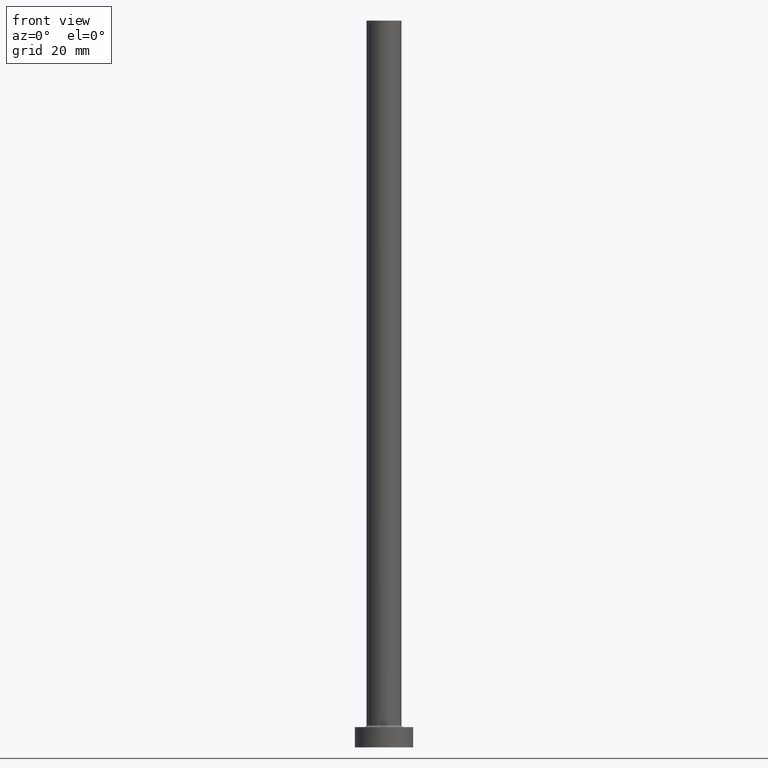
[diagram: clean part render]
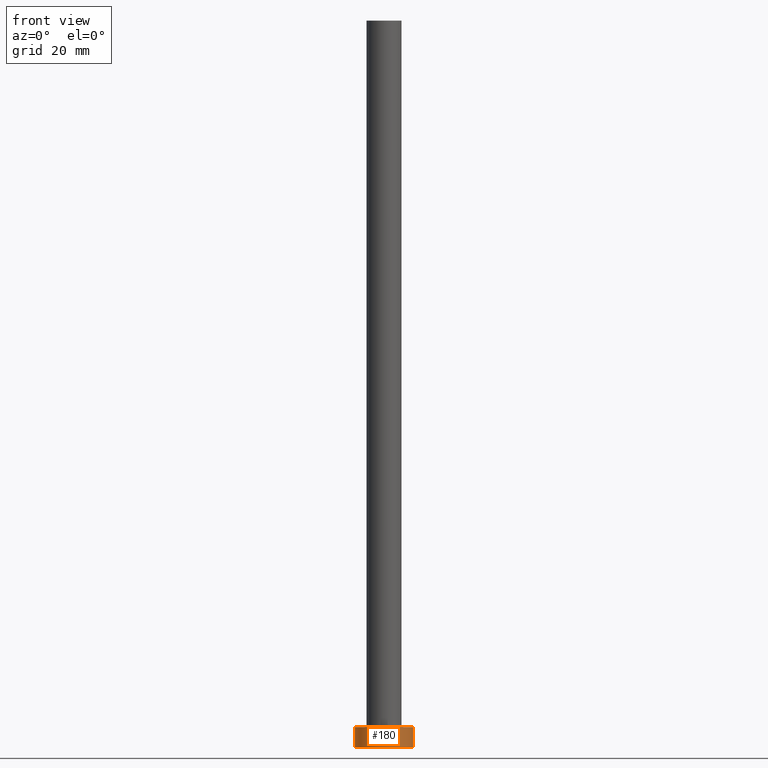
[diagram: same view with one face highlighted and labeled with its STEP entity id]
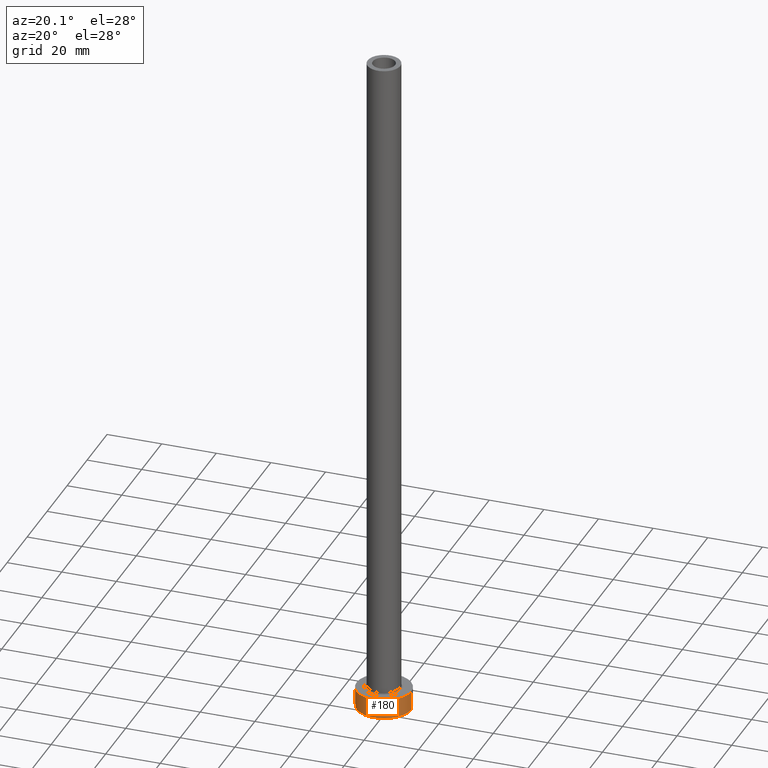
[diagram: same view with one face highlighted and labeled with its STEP entity id]
A machine part, front view. The second image highlights one B-rep face of the part: STEP entity #180.
A second angle (auxiliary view) of the same face is appended — the face is thin or edge-on in the first view.
In plain terms, the highlighted cylindrical surface (edge-blend (fillet) strip) has radius 10 mm, axis along (-0, -0, -1).
Its self-contained STEP definition (entity closure, byte-faithful):
#13 = CARTESIAN_POINT ( 'NONE',  ( -10.00000000000000000, 0.000000000000000000, 7.000000000000000000 ) ) ;
#15 = DIRECTION ( 'NONE',  ( 1.000000000000000000, 0.000000000000000000, 0.000000000000000000 ) ) ;
#19 = DIRECTION ( 'NONE',  ( -0.000000000000000000, -0.000000000000000000, -1.000000000000000000 ) ) ;
#25 = CARTESIAN_POINT ( 'NONE',  ( 10.00000000000000000, 1.224646799147353256E-15, 7.000000000000000000 ) ) ;
#28 = VERTEX_POINT ( 'NONE', #452 ) ;
#36 = ORIENTED_EDGE ( 'NONE', *, *, #84, .F. ) ;
#38 = VERTEX_POINT ( 'NONE', #267 ) ;
#40 = ORIENTED_EDGE ( 'NONE', *, *, #121, .T. ) ;
#45 = ORIENTED_EDGE ( 'NONE', *, *, #94, .T. ) ;
#46 = AXIS2_PLACEMENT_3D ( 'NONE', #198, #313, #242 ) ;
#52 = CARTESIAN_POINT ( 'NONE',  ( 10.00000000000000000, 1.224646799147353256E-15, 0.000000000000000000 ) ) ;
#80 = VERTEX_POINT ( 'NONE', #13 ) ;
#84 = EDGE_CURVE ( 'NONE', #28, #394, #306, .T. ) ;
#94 = EDGE_CURVE ( 'NONE', #38, #394, #374, .T. ) ;
#98 = CARTESIAN_POINT ( 'NONE',  ( 0.000000000000000000, 0.000000000000000000, 7.000000000000000000 ) ) ;
#121 = EDGE_CURVE ( 'NONE', #80, #38, #343, .T. ) ;
#134 = DIRECTION ( 'NONE',  ( 0.000000000000000000, 0.000000000000000000, 1.000000000000000000 ) ) ;
#146 = VECTOR ( 'NONE', #19, 1000.000000000000000 ) ;
#164 = CARTESIAN_POINT ( 'NONE',  ( -10.00000000000000000, 0.000000000000000000, 7.000000000000000000 ) ) ;
#170 = FACE_OUTER_BOUND ( 'NONE', #324, .T. ) ;
#180 = ADVANCED_FACE ( 'NONE', ( #170 ), #302, .T. ) ;
#181 = AXIS2_PLACEMENT_3D ( 'NONE', #405, #134, #15 ) ;
#198 = CARTESIAN_POINT ( 'NONE',  ( 0.000000000000000000, 0.000000000000000000, 0.000000000000000000 ) ) ;
#205 = EDGE_CURVE ( 'NONE', #80, #28, #399, .T. ) ;
#241 = DIRECTION ( 'NONE',  ( -0.000000000000000000, -0.000000000000000000, -1.000000000000000000 ) ) ;
#242 = DIRECTION ( 'NONE',  ( 1.000000000000000000, 0.000000000000000000, 0.000000000000000000 ) ) ;
#257 = VECTOR ( 'NONE', #372, 1000.000000000000000 ) ;
#267 = CARTESIAN_POINT ( 'NONE',  ( -10.00000000000000000, 0.000000000000000000, 0.000000000000000000 ) ) ;
#290 = ORIENTED_EDGE ( 'NONE', *, *, #205, .F. ) ;
#302 = CYLINDRICAL_SURFACE ( 'NONE', #363, 10.00000000000000000 ) ;
#306 = LINE ( 'NONE', #25, #257 ) ;
#313 = DIRECTION ( 'NONE',  ( 0.000000000000000000, 0.000000000000000000, 1.000000000000000000 ) ) ;
#324 = EDGE_LOOP ( 'NONE', ( #36, #290, #40, #45 ) ) ;
#343 = LINE ( 'NONE', #164, #146 ) ;
#363 = AXIS2_PLACEMENT_3D ( 'NONE', #98, #241, #413 ) ;
#372 = DIRECTION ( 'NONE',  ( -0.000000000000000000, -0.000000000000000000, -1.000000000000000000 ) ) ;
#374 = CIRCLE ( 'NONE', #46, 10.00000000000000000 ) ;
#394 = VERTEX_POINT ( 'NONE', #52 ) ;
#399 = CIRCLE ( 'NONE', #181, 10.00000000000000000 ) ;
#405 = CARTESIAN_POINT ( 'NONE',  ( 0.000000000000000000, 0.000000000000000000, 7.000000000000000000 ) ) ;
#413 = DIRECTION ( 'NONE',  ( -1.000000000000000000, 0.000000000000000000, 0.000000000000000000 ) ) ;
#452 = CARTESIAN_POINT ( 'NONE',  ( 10.00000000000000000, 1.224646799147353256E-15, 7.000000000000000000 ) ) ;